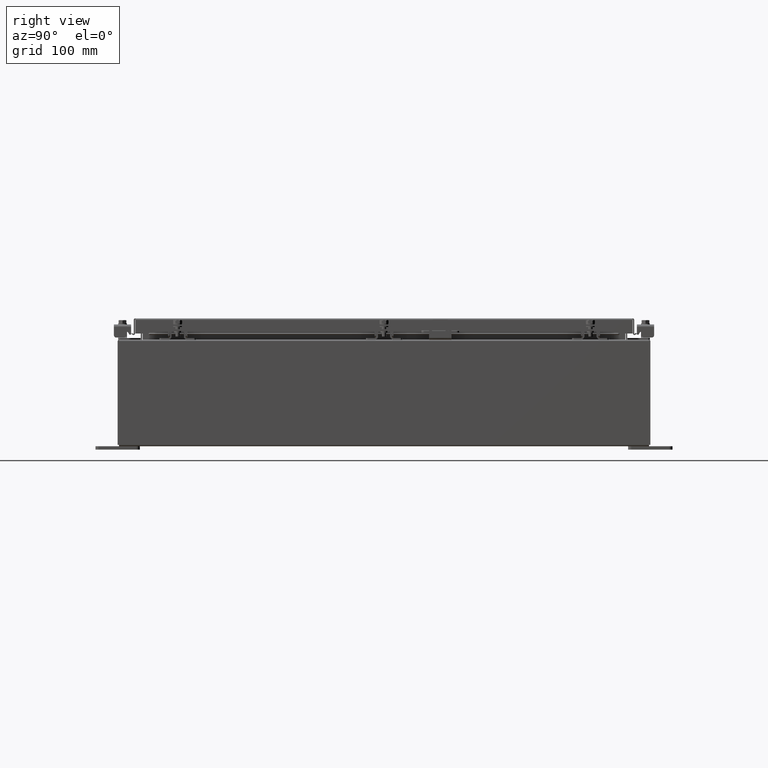
[diagram: clean part render]
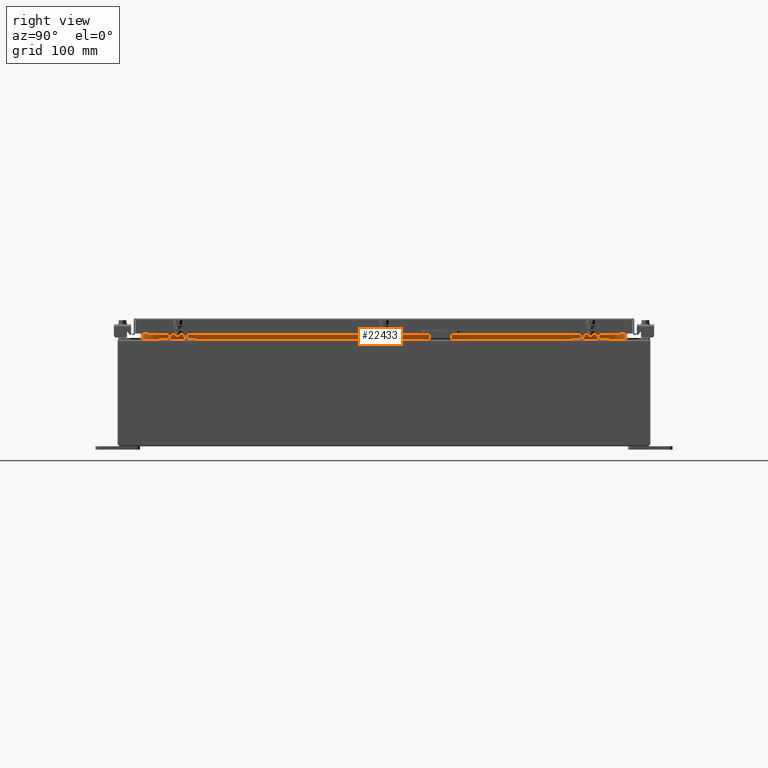
[diagram: same view with one face highlighted and labeled with its STEP entity id]
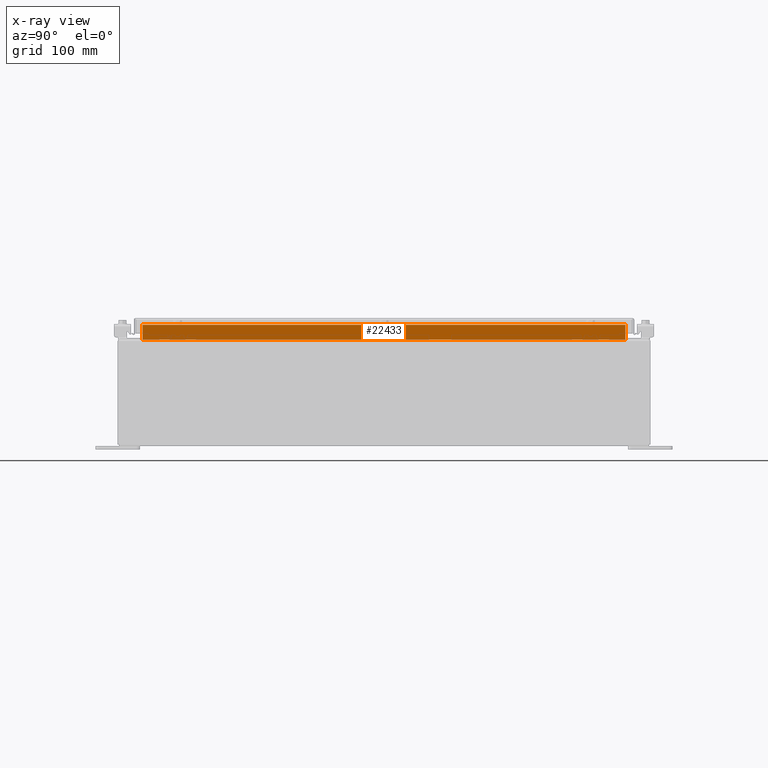
[diagram: x-ray of the same camera — body ghosted, the highlighted face saturated]
A machine part, right view. The second image highlights one B-rep face of the part: STEP entity #22433.
The next image is the same camera in x-ray: the body ghosted, the highlighted face saturated — about 0% of this face is hidden behind the body in this view.
In plain terms, the highlighted planar face has unit normal (1, 0, -0).
Its self-contained STEP definition (entity closure, byte-faithful):
#2469 = VECTOR ( 'NONE', #33076, 39.37007874015748100 ) ;
#2641 = ORIENTED_EDGE ( 'NONE', *, *, #33964, .F. ) ;
#5823 = EDGE_LOOP ( 'NONE', ( #2641, #7518, #5834, #22518 ) ) ;
#5834 = ORIENTED_EDGE ( 'NONE', *, *, #27494, .F. ) ;
#5925 = VERTEX_POINT ( 'NONE', #26588 ) ;
#7518 = ORIENTED_EDGE ( 'NONE', *, *, #7720, .F. ) ;
#7710 = CARTESIAN_POINT ( 'NONE',  ( 10.69970000000001400, 13.59375000000000200, 5.938300000000010600 ) ) ;
#7720 = EDGE_CURVE ( 'NONE', #37275, #5925, #31472, .T. ) ;
#9527 = DIRECTION ( 'NONE',  ( 1.000000000000000000, 0.0000000000000000000, -4.723826639860392000E-015 ) ) ;
#17802 = LINE ( 'NONE', #18656, #2469 ) ;
#18656 = CARTESIAN_POINT ( 'NONE',  ( 10.69970000000002100, -13.59375000000000200, 6.850600000000010700 ) ) ;
#18929 = CARTESIAN_POINT ( 'NONE',  ( 10.69970000000001800, 13.59375000000000400, 5.938300000000012300 ) ) ;
#19442 = LINE ( 'NONE', #36685, #26225 ) ;
#19461 = DIRECTION ( 'NONE',  ( 0.0000000000000000000, 1.000000000000000000, 0.0000000000000000000 ) ) ;
#20992 = PLANE ( 'NONE',  #22208 ) ;
#22208 = AXIS2_PLACEMENT_3D ( 'NONE', #26815, #9527, #29726 ) ;
#22433 = ADVANCED_FACE ( 'NONE', ( #28973 ), #20992, .T. ) ;
#22518 = ORIENTED_EDGE ( 'NONE', *, *, #27573, .F. ) ;
#22769 = CARTESIAN_POINT ( 'NONE',  ( 10.69970000000001800, -13.59375000000000400, 5.938300000000012300 ) ) ;
#22786 = LINE ( 'NONE', #7710, #30494 ) ;
#22885 = VECTOR ( 'NONE', #19461, 39.37007874015748100 ) ;
#23062 = VERTEX_POINT ( 'NONE', #18929 ) ;
#24444 = VERTEX_POINT ( 'NONE', #22769 ) ;
#26225 = VECTOR ( 'NONE', #33779, 39.37007874015748100 ) ;
#26588 = CARTESIAN_POINT ( 'NONE',  ( 10.69970000000002100, 13.59375000000000200, 6.762900000000009900 ) ) ;
#26815 = CARTESIAN_POINT ( 'NONE',  ( 10.69969999999998900, 0.0000000000000000000, -5.054352789851418100E-014 ) ) ;
#27494 = EDGE_CURVE ( 'NONE', #24444, #37275, #17802, .T. ) ;
#27573 = EDGE_CURVE ( 'NONE', #23062, #24444, #22786, .T. ) ;
#27892 = DIRECTION ( 'NONE',  ( 1.607708244547244000E-016, -1.000000000000000000, 1.607708244547244000E-016 ) ) ;
#28973 = FACE_OUTER_BOUND ( 'NONE', #5823, .T. ) ;
#29726 = DIRECTION ( 'NONE',  ( -4.723826639860392000E-015, 0.0000000000000000000, -1.000000000000000000 ) ) ;
#30494 = VECTOR ( 'NONE', #27892, 39.37007874015748100 ) ;
#31472 = LINE ( 'NONE', #36775, #22885 ) ;
#32509 = CARTESIAN_POINT ( 'NONE',  ( 10.69970000000002100, -13.59375000000000200, 6.762900000000009900 ) ) ;
#33076 = DIRECTION ( 'NONE',  ( 4.723826639860403100E-015, -0.0000000000000000000, 1.000000000000000000 ) ) ;
#33779 = DIRECTION ( 'NONE',  ( -4.723826639860392000E-015, -0.0000000000000000000, -1.000000000000000000 ) ) ;
#33964 = EDGE_CURVE ( 'NONE', #5925, #23062, #19442, .T. ) ;
#36685 = CARTESIAN_POINT ( 'NONE',  ( 10.69970000000001800, 13.59375000000000200, 5.925300000000009800 ) ) ;
#36775 = CARTESIAN_POINT ( 'NONE',  ( 10.69970000000002100, -13.59375000000000200, 6.762900000000009900 ) ) ;
#37275 = VERTEX_POINT ( 'NONE', #32509 ) ;